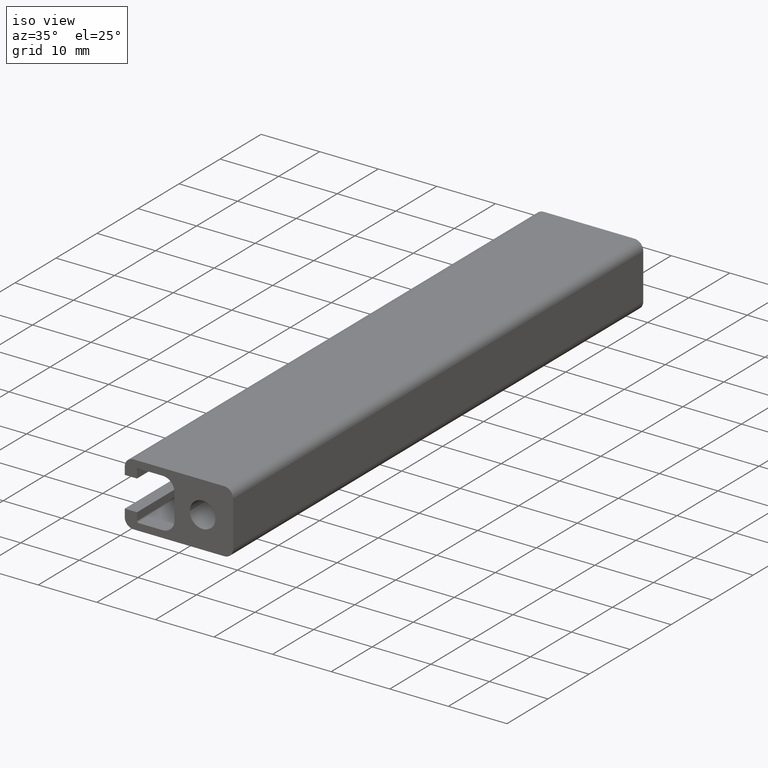
[diagram: clean part render]
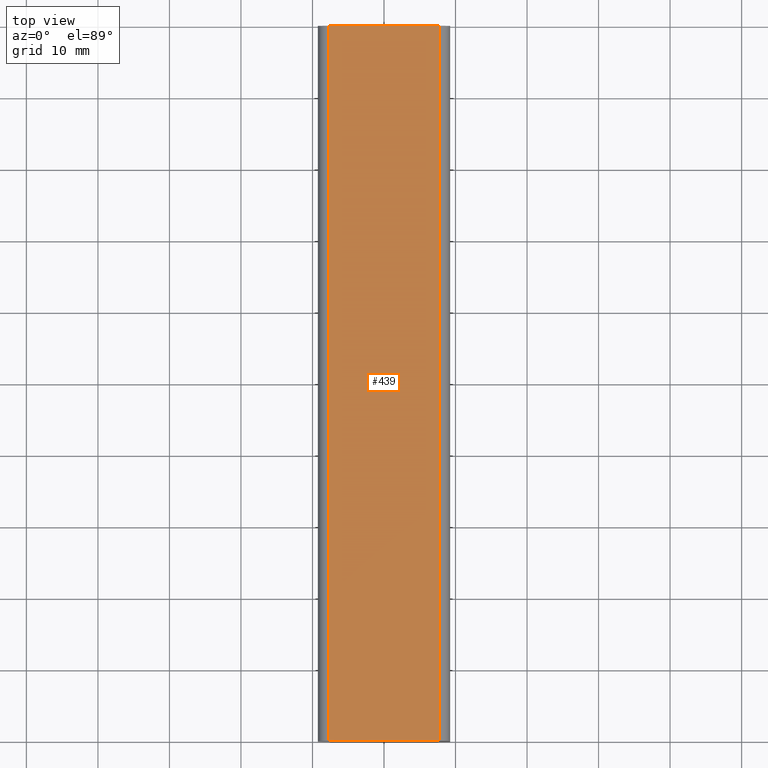
[diagram: tour spotlight — one face highlighted and labeled with its STEP entity id]
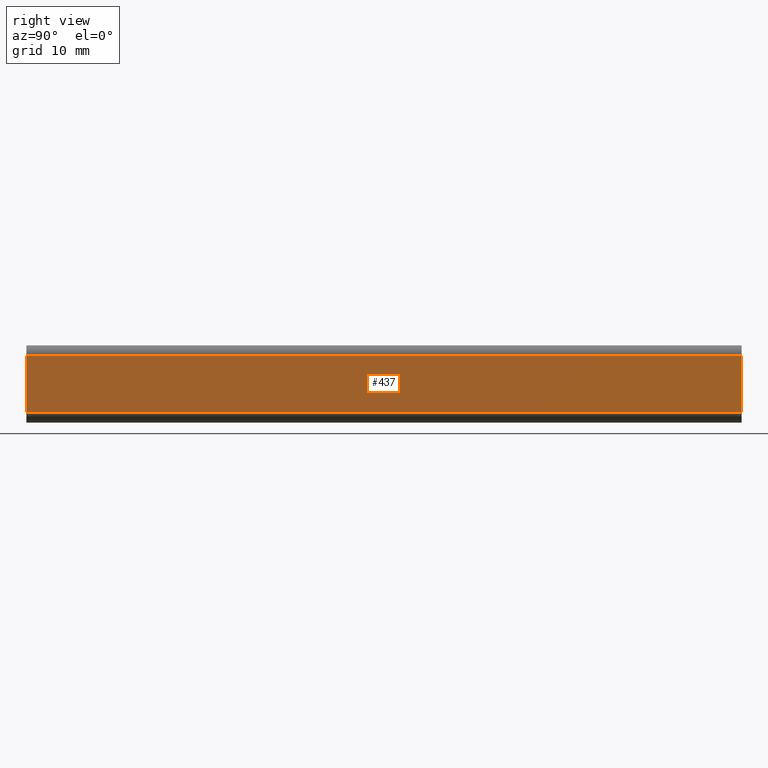
[diagram: tour spotlight — one face highlighted and labeled with its STEP entity id]
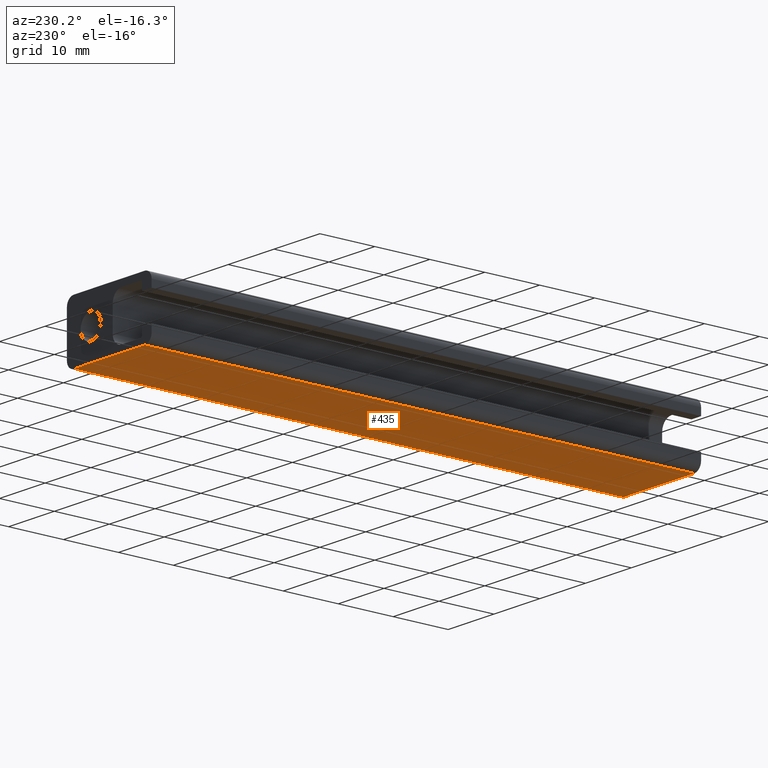
[diagram: tour spotlight — one face highlighted and labeled with its STEP entity id]
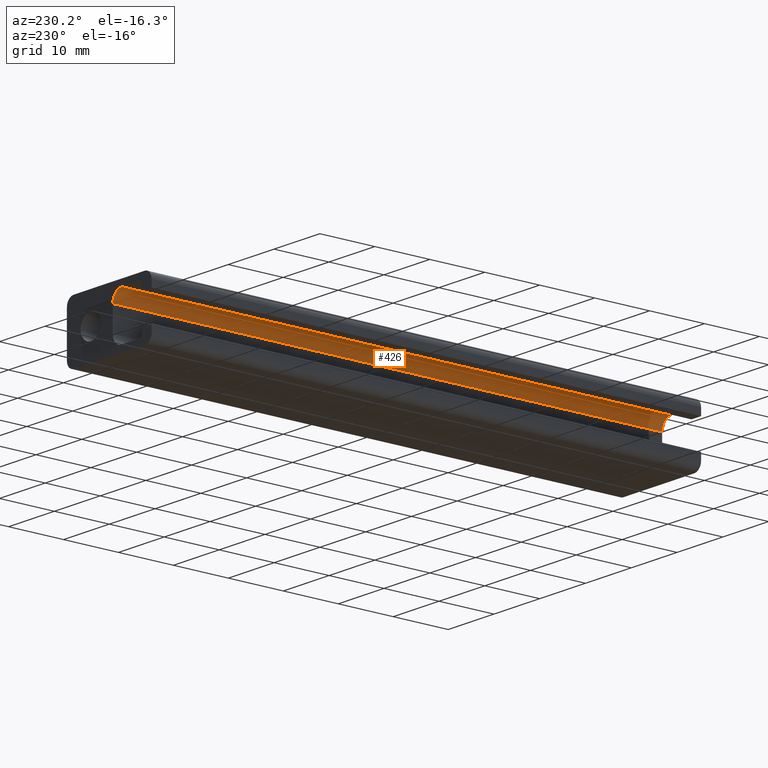
[diagram: tour spotlight — one face highlighted and labeled with its STEP entity id]
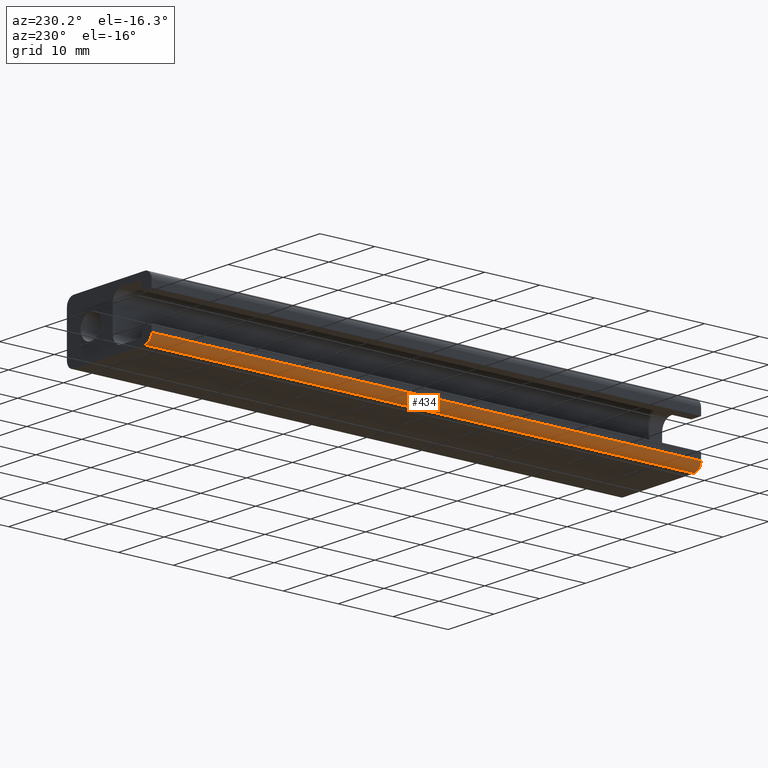
[diagram: tour spotlight — one face highlighted and labeled with its STEP entity id]
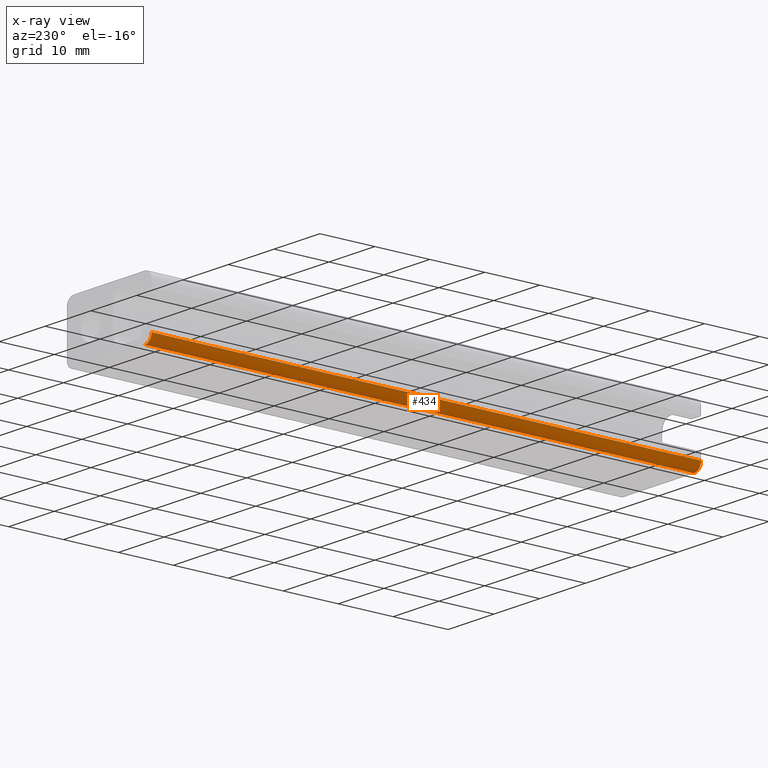
[diagram: x-ray of the same camera — body ghosted, this tour face saturated]
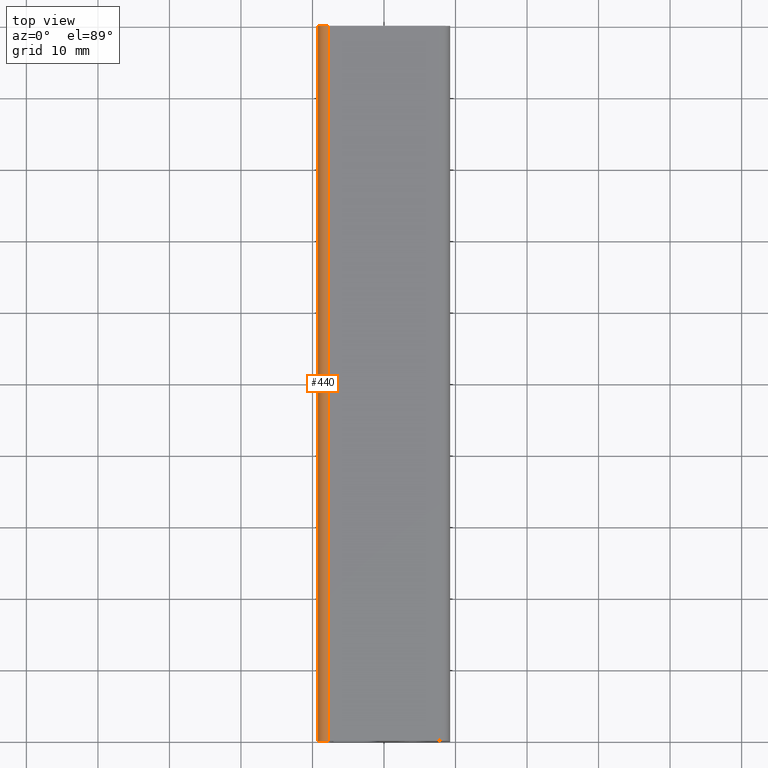
[diagram: tour spotlight — one face highlighted and labeled with its STEP entity id]
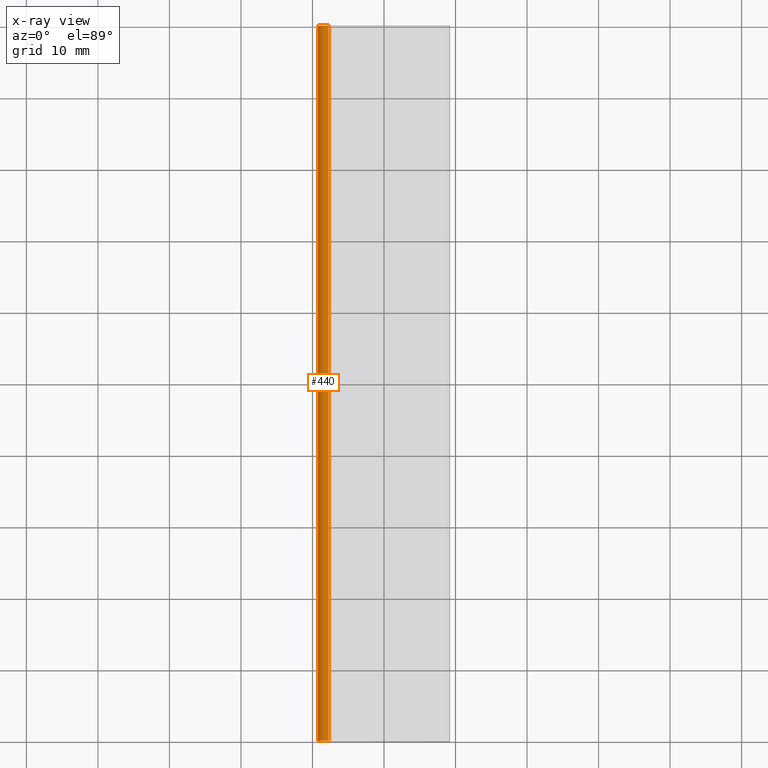
[diagram: x-ray of the same camera — body ghosted, this tour face saturated]
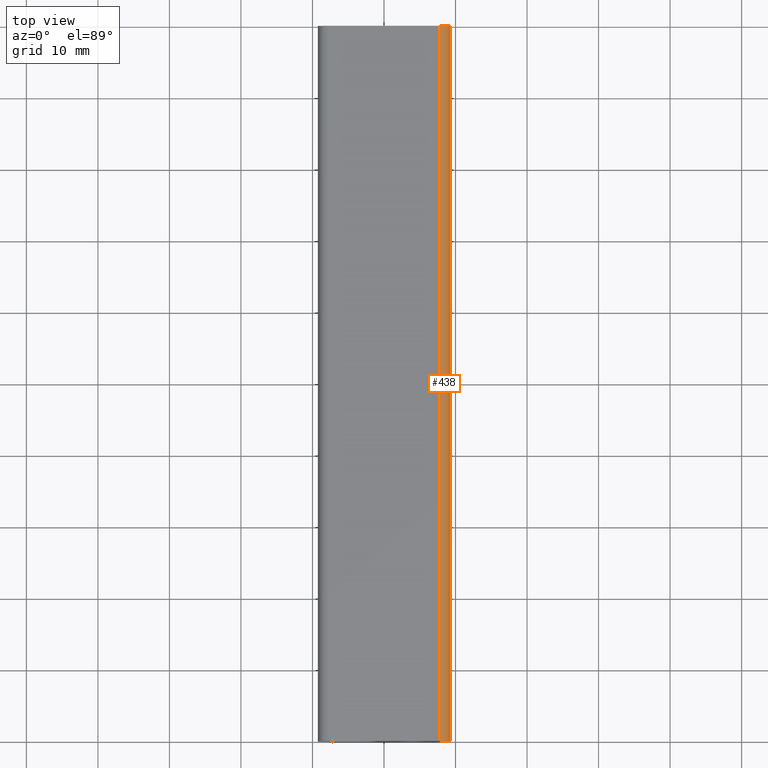
[diagram: tour spotlight — one face highlighted and labeled with its STEP entity id]
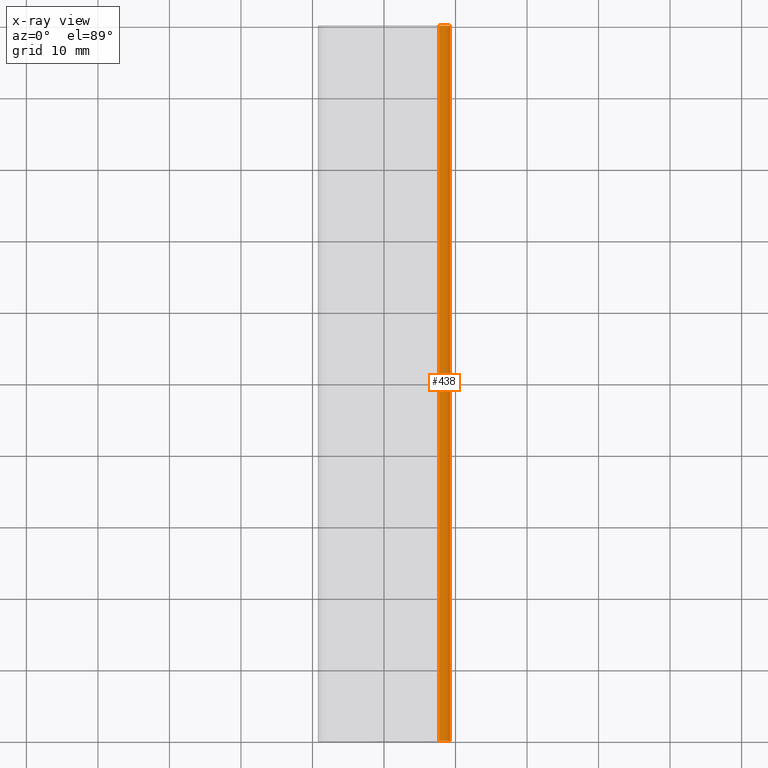
[diagram: x-ray of the same camera — body ghosted, this tour face saturated]
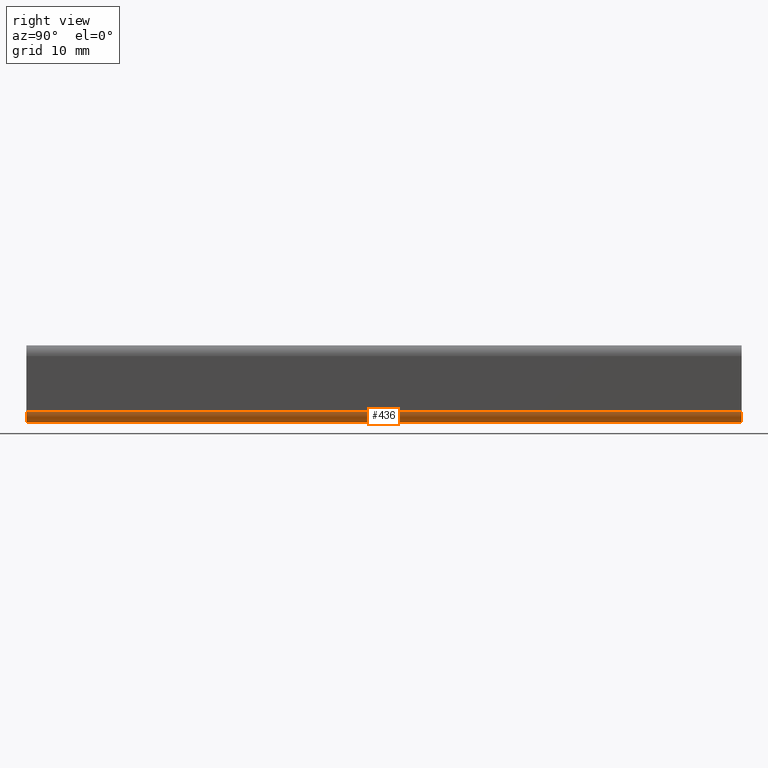
[diagram: tour spotlight — one face highlighted and labeled with its STEP entity id]
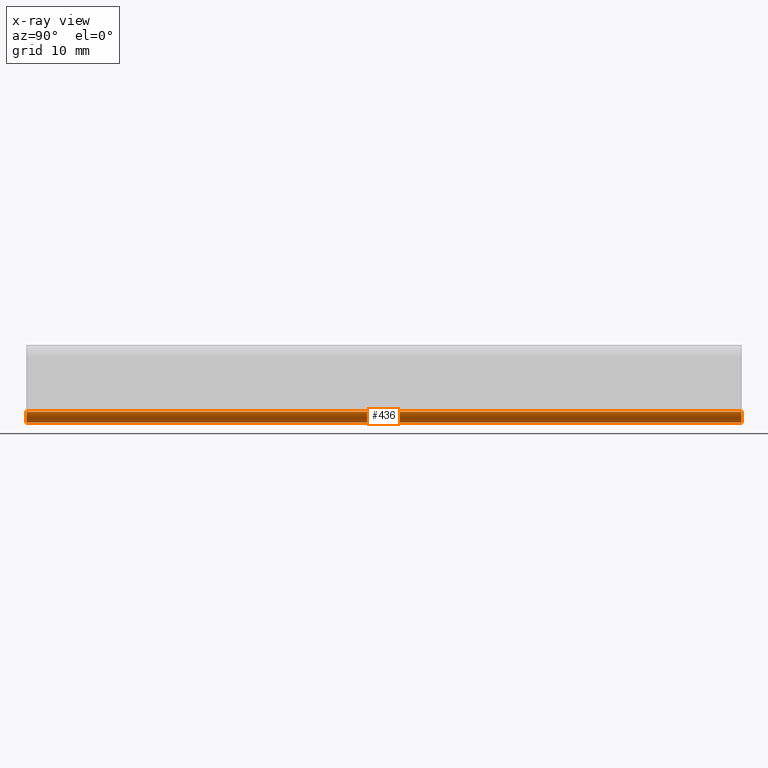
[diagram: x-ray of the same camera — body ghosted, this tour face saturated]
A machine part: a face-by-face anatomy tour. The part has 23 B-rep faces; the first image is the clean iso view, then the 8 largest visible faces are spotlighted one at a time (largest first), each with its STEP entity span.

Face 1 — top view, entity #439. In plain terms, the highlighted planar face has unit normal (0, 0, 1).
Definition (entity closure, byte-faithful):
#45=LINE('',#710,#89);
#46=LINE('',#713,#90);
#47=LINE('',#715,#91);
#48=LINE('',#716,#92);
#89=VECTOR('',#580,100.);
#90=VECTOR('',#583,15.5000000000004);
#91=VECTOR('',#584,15.5000000000004);
#92=VECTOR('',#585,100.);
#111=PLANE('',#478);
#135=FACE_OUTER_BOUND('',#159,.T.);
#159=EDGE_LOOP('',(#349,#350,#351,#352));
#217=VERTEX_POINT('',#706);
#218=VERTEX_POINT('',#708);
#219=VERTEX_POINT('',#712);
#220=VERTEX_POINT('',#714);
#273=EDGE_CURVE('',#217,#218,#45,.T.);
#274=EDGE_CURVE('',#217,#219,#46,.T.);
#275=EDGE_CURVE('',#220,#218,#47,.T.);
#276=EDGE_CURVE('',#219,#220,#48,.T.);
#349=ORIENTED_EDGE('',*,*,#274,.F.);
#350=ORIENTED_EDGE('',*,*,#273,.T.);
#351=ORIENTED_EDGE('',*,*,#275,.F.);
#352=ORIENTED_EDGE('',*,*,#276,.F.);
#439=ADVANCED_FACE('',(#135),#111,.T.);
#478=AXIS2_PLACEMENT_3D('',#711,#581,#582);
#580=DIRECTION('',(0.,1.,0.));
#581=DIRECTION('center_axis',(7.56384202583311E-14,0.,1.));
#582=DIRECTION('ref_axis',(1.,0.,-7.56728013584507E-14));
#583=DIRECTION('',(-1.,0.,7.56384202583311E-14));
#584=DIRECTION('',(1.,0.,-7.56384202583311E-14));
#585=DIRECTION('',(0.,1.,0.));
#706=CARTESIAN_POINT('',(7.75000000000023,0.,5.39999999999846));
#708=CARTESIAN_POINT('',(7.75000000000023,100.,5.39999999999846));
#710=CARTESIAN_POINT('',(7.75000000000023,0.,5.39999999999846));
#711=CARTESIAN_POINT('Origin',(-7.75000000000021,0.,5.39999999999964));
#712=CARTESIAN_POINT('',(-7.75000000000021,0.,5.39999999999964));
#713=CARTESIAN_POINT('',(7.75000000000023,0.,5.39999999999846));
#714=CARTESIAN_POINT('',(-7.75000000000021,100.,5.39999999999964));
#715=CARTESIAN_POINT('',(7.75000000000023,100.,5.39999999999846));
#716=CARTESIAN_POINT('',(-7.75000000000021,0.,5.39999999999964));

Face 2 — right view, entity #437. In plain terms, the highlighted planar face has unit normal (1, 0, 0).
Definition (entity closure, byte-faithful):
#41=LINE('',#698,#85);
#42=LINE('',#701,#86);
#43=LINE('',#703,#87);
#44=LINE('',#704,#88);
#85=VECTOR('',#568,100.);
#86=VECTOR('',#571,7.79999999999745);
#87=VECTOR('',#572,7.79999999999745);
#88=VECTOR('',#573,100.);
#110=PLANE('',#474);
#133=FACE_OUTER_BOUND('',#157,.T.);
#157=EDGE_LOOP('',(#341,#342,#343,#344));
#213=VERTEX_POINT('',#694);
#214=VERTEX_POINT('',#696);
#215=VERTEX_POINT('',#700);
#216=VERTEX_POINT('',#702);
#267=EDGE_CURVE('',#213,#214,#41,.T.);
#268=EDGE_CURVE('',#213,#215,#42,.T.);
#269=EDGE_CURVE('',#216,#214,#43,.T.);
#270=EDGE_CURVE('',#215,#216,#44,.T.);
#341=ORIENTED_EDGE('',*,*,#268,.F.);
#342=ORIENTED_EDGE('',*,*,#267,.T.);
#343=ORIENTED_EDGE('',*,*,#269,.F.);
#344=ORIENTED_EDGE('',*,*,#270,.F.);
#437=ADVANCED_FACE('',(#133),#110,.T.);
#474=AXIS2_PLACEMENT_3D('',#699,#569,#570);
#568=DIRECTION('',(0.,1.,0.));
#569=DIRECTION('center_axis',(1.,0.,2.24321985488438E-13));
#570=DIRECTION('ref_axis',(2.24353868816252E-13,0.,-1.));
#571=DIRECTION('',(-2.24321985488438E-13,0.,1.));
#572=DIRECTION('',(2.24321985488438E-13,0.,-1.));
#573=DIRECTION('',(0.,1.,0.));
#694=CARTESIAN_POINT('',(9.25000000000171,0.,-3.89999999999872));
#696=CARTESIAN_POINT('',(9.25000000000171,100.,-3.89999999999872));
#698=CARTESIAN_POINT('',(9.25000000000171,0.,-3.89999999999872));
#699=CARTESIAN_POINT('Origin',(9.24999999999996,0.,3.89999999999873));
#700=CARTESIAN_POINT('',(9.24999999999996,0.,3.89999999999873));
#701=CARTESIAN_POINT('',(9.25000000000171,0.,-3.89999999999872));
#702=CARTESIAN_POINT('',(9.24999999999996,100.,3.89999999999873));
#703=CARTESIAN_POINT('',(9.25000000000171,100.,-3.89999999999872));
#704=CARTESIAN_POINT('',(9.24999999999996,0.,3.89999999999873));

Face 3 — auxiliary view, entity #435. In plain terms, the highlighted planar face has unit normal (-0, 0, -1).
Definition (entity closure, byte-faithful):
#37=LINE('',#686,#81);
#38=LINE('',#689,#82);
#39=LINE('',#691,#83);
#40=LINE('',#692,#84);
#81=VECTOR('',#556,100.);
#82=VECTOR('',#559,15.5000000000005);
#83=VECTOR('',#560,15.5000000000005);
#84=VECTOR('',#561,100.);
#109=PLANE('',#470);
#131=FACE_OUTER_BOUND('',#155,.T.);
#155=EDGE_LOOP('',(#333,#334,#335,#336));
#209=VERTEX_POINT('',#682);
#210=VERTEX_POINT('',#684);
#211=VERTEX_POINT('',#688);
#212=VERTEX_POINT('',#690);
#261=EDGE_CURVE('',#209,#210,#37,.T.);
#262=EDGE_CURVE('',#209,#211,#38,.T.);
#263=EDGE_CURVE('',#212,#210,#39,.T.);
#264=EDGE_CURVE('',#211,#212,#40,.T.);
#333=ORIENTED_EDGE('',*,*,#262,.F.);
#334=ORIENTED_EDGE('',*,*,#261,.T.);
#335=ORIENTED_EDGE('',*,*,#263,.F.);
#336=ORIENTED_EDGE('',*,*,#264,.F.);
#435=ADVANCED_FACE('',(#131),#109,.T.);
#470=AXIS2_PLACEMENT_3D('',#687,#557,#558);
#556=DIRECTION('',(0.,1.,0.));
#557=DIRECTION('center_axis',(-1.10735793294867E-13,0.,-1.));
#558=DIRECTION('ref_axis',(-1.,0.,1.10755848936606E-13));
#559=DIRECTION('',(1.,0.,-1.10735793294867E-13));
#560=DIRECTION('',(-1.,0.,1.10735793294867E-13));
#561=DIRECTION('',(0.,1.,0.));
#682=CARTESIAN_POINT('',(-7.75000000000021,0.,-5.39999999999849));
#684=CARTESIAN_POINT('',(-7.75000000000021,100.,-5.39999999999849));
#686=CARTESIAN_POINT('',(-7.75000000000021,0.,-5.39999999999849));
#687=CARTESIAN_POINT('Origin',(7.75000000000024,0.,-5.40000000000021));
#688=CARTESIAN_POINT('',(7.75000000000024,0.,-5.40000000000021));
#689=CARTESIAN_POINT('',(-7.75000000000021,0.,-5.39999999999849));
#690=CARTESIAN_POINT('',(7.75000000000024,100.,-5.40000000000021));
#691=CARTESIAN_POINT('',(-7.75000000000021,100.,-5.39999999999849));
#692=CARTESIAN_POINT('',(7.75000000000024,0.,-5.40000000000021));

Face 4 — auxiliary view, entity #426. In plain terms, the highlighted cylindrical surface (edge-blend (fillet) strip) has radius 2 mm, axis along (0, 1, 0).
Definition (entity closure, byte-faithful):
#18=LINE('',#632,#62);
#19=LINE('',#638,#63);
#62=VECTOR('',#503,100.);
#63=VECTOR('',#510,100.);
#122=FACE_OUTER_BOUND('',#146,.T.);
#146=EDGE_LOOP('',(#297,#298,#299,#300));
#171=CIRCLE('',#454,2.00000000000045);
#172=CIRCLE('',#455,2.00000000000045);
#190=VERTEX_POINT('',#626);
#192=VERTEX_POINT('',#630);
#193=VERTEX_POINT('',#634);
#194=VERTEX_POINT('',#636);
#234=EDGE_CURVE('',#190,#192,#18,.T.);
#235=EDGE_CURVE('',#190,#193,#171,.T.);
#236=EDGE_CURVE('',#194,#192,#172,.T.);
#237=EDGE_CURVE('',#193,#194,#19,.T.);
#297=ORIENTED_EDGE('',*,*,#235,.F.);
#298=ORIENTED_EDGE('',*,*,#234,.T.);
#299=ORIENTED_EDGE('',*,*,#236,.F.);
#300=ORIENTED_EDGE('',*,*,#237,.F.);
#416=CYLINDRICAL_SURFACE('',#453,2.00000000000045);
#426=ADVANCED_FACE('',(#122),#416,.F.);
#453=AXIS2_PLACEMENT_3D('',#633,#504,#505);
#454=AXIS2_PLACEMENT_3D('',#635,#506,#507);
#455=AXIS2_PLACEMENT_3D('',#637,#508,#509);
#503=DIRECTION('',(0.,1.,0.));
#504=DIRECTION('center_axis',(0.,1.,0.));
#505=DIRECTION('ref_axis',(0.,0.,1.));
#506=DIRECTION('center_axis',(0.,1.,0.));
#507=DIRECTION('ref_axis',(0.,0.,1.));
#508=DIRECTION('center_axis',(0.,-1.,0.));
#509=DIRECTION('ref_axis',(0.,0.,1.));
#510=DIRECTION('',(0.,1.,0.));
#626=CARTESIAN_POINT('',(-2.75000000000022,0.,4.20000000000073));
#630=CARTESIAN_POINT('',(-2.75000000000022,100.,4.20000000000073));
#632=CARTESIAN_POINT('',(-2.75000000000022,0.,4.20000000000073));
#633=CARTESIAN_POINT('Origin',(-2.75000000000022,0.,2.20000000000028));
#634=CARTESIAN_POINT('',(-0.749999999999762,0.,2.20000000000027));
#635=CARTESIAN_POINT('Origin',(-2.75000000000022,0.,2.20000000000028));
#636=CARTESIAN_POINT('',(-0.749999999999762,100.,2.20000000000027));
#637=CARTESIAN_POINT('Origin',(-2.75000000000022,100.,2.20000000000028));
#638=CARTESIAN_POINT('',(-0.749999999999762,0.,2.20000000000027));

Face 5 — auxiliary view, entity #434. An x-ray twin of the same camera follows (body ghosted, this face saturated) — the face is partly hidden behind the body. In plain terms, the highlighted cylindrical surface (edge-blend (fillet) strip) has radius 1.5 mm, axis along (0, 1, 0).
Definition (entity closure, byte-faithful):
#36=LINE('',#680,#80);
#37=LINE('',#686,#81);
#80=VECTOR('',#549,100.);
#81=VECTOR('',#556,100.);
#130=FACE_OUTER_BOUND('',#154,.T.);
#154=EDGE_LOOP('',(#329,#330,#331,#332));
#177=CIRCLE('',#468,1.49999999999977);
#178=CIRCLE('',#469,1.49999999999977);
#207=VERTEX_POINT('',#676);
#208=VERTEX_POINT('',#678);
#209=VERTEX_POINT('',#682);
#210=VERTEX_POINT('',#684);
#258=EDGE_CURVE('',#207,#208,#36,.T.);
#259=EDGE_CURVE('',#207,#209,#177,.T.);
#260=EDGE_CURVE('',#210,#208,#178,.T.);
#261=EDGE_CURVE('',#209,#210,#37,.T.);
#329=ORIENTED_EDGE('',*,*,#259,.F.);
#330=ORIENTED_EDGE('',*,*,#258,.T.);
#331=ORIENTED_EDGE('',*,*,#260,.F.);
#332=ORIENTED_EDGE('',*,*,#261,.F.);
#419=CYLINDRICAL_SURFACE('',#467,1.49999999999977);
#434=ADVANCED_FACE('',(#130),#419,.T.);
#467=AXIS2_PLACEMENT_3D('',#681,#550,#551);
#468=AXIS2_PLACEMENT_3D('',#683,#552,#553);
#469=AXIS2_PLACEMENT_3D('',#685,#554,#555);
#549=DIRECTION('',(0.,1.,0.));
#550=DIRECTION('center_axis',(0.,1.,0.));
#551=DIRECTION('ref_axis',(-5.92118946466844E-15,0.,1.));
#552=DIRECTION('center_axis',(0.,-1.,0.));
#553=DIRECTION('ref_axis',(-5.92118946466844E-15,0.,1.));
#554=DIRECTION('center_axis',(0.,1.,0.));
#555=DIRECTION('ref_axis',(-5.92118946466844E-15,0.,1.));
#556=DIRECTION('',(0.,1.,0.));
#676=CARTESIAN_POINT('',(-9.24999999999999,0.,-3.89999999999873));
#678=CARTESIAN_POINT('',(-9.24999999999999,100.,-3.89999999999873));
#680=CARTESIAN_POINT('',(-9.24999999999999,0.,-3.89999999999873));
#681=CARTESIAN_POINT('Origin',(-7.75000000000022,0.,-3.89999999999873));
#682=CARTESIAN_POINT('',(-7.75000000000021,0.,-5.39999999999849));
#683=CARTESIAN_POINT('Origin',(-7.75000000000022,0.,-3.89999999999873));
#684=CARTESIAN_POINT('',(-7.75000000000021,100.,-5.39999999999849));
#685=CARTESIAN_POINT('Origin',(-7.75000000000022,100.,-3.89999999999873));
#686=CARTESIAN_POINT('',(-7.75000000000021,0.,-5.39999999999849));

Face 6 — top view, entity #440. An x-ray twin of the same camera follows (body ghosted, this face saturated) — the face is partly hidden behind the body. In plain terms, the highlighted cylindrical surface (edge-blend (fillet) strip) has radius 1.5 mm, axis along (0, 1, 0).
Definition (entity closure, byte-faithful):
#48=LINE('',#716,#92);
#49=LINE('',#722,#93);
#92=VECTOR('',#585,100.);
#93=VECTOR('',#592,100.);
#136=FACE_OUTER_BOUND('',#160,.T.);
#160=EDGE_LOOP('',(#353,#354,#355,#356));
#183=CIRCLE('',#480,1.50000000000091);
#184=CIRCLE('',#481,1.50000000000091);
#219=VERTEX_POINT('',#712);
#220=VERTEX_POINT('',#714);
#221=VERTEX_POINT('',#718);
#222=VERTEX_POINT('',#720);
#276=EDGE_CURVE('',#219,#220,#48,.T.);
#277=EDGE_CURVE('',#219,#221,#183,.T.);
#278=EDGE_CURVE('',#222,#220,#184,.T.);
#279=EDGE_CURVE('',#221,#222,#49,.T.);
#353=ORIENTED_EDGE('',*,*,#277,.F.);
#354=ORIENTED_EDGE('',*,*,#276,.T.);
#355=ORIENTED_EDGE('',*,*,#278,.F.);
#356=ORIENTED_EDGE('',*,*,#279,.F.);
#422=CYLINDRICAL_SURFACE('',#479,1.50000000000091);
#440=ADVANCED_FACE('',(#136),#422,.T.);
#479=AXIS2_PLACEMENT_3D('',#717,#586,#587);
#480=AXIS2_PLACEMENT_3D('',#719,#588,#589);
#481=AXIS2_PLACEMENT_3D('',#721,#590,#591);
#585=DIRECTION('',(0.,1.,0.));
#586=DIRECTION('center_axis',(0.,1.,0.));
#587=DIRECTION('ref_axis',(1.,0.,-5.92118946466836E-15));
#588=DIRECTION('center_axis',(0.,-1.,0.));
#589=DIRECTION('ref_axis',(1.,0.,-5.92118946466836E-15));
#590=DIRECTION('center_axis',(0.,1.,0.));
#591=DIRECTION('ref_axis',(1.,0.,-5.92118946466836E-15));
#592=DIRECTION('',(0.,1.,0.));
#712=CARTESIAN_POINT('',(-7.75000000000021,0.,5.39999999999964));
#714=CARTESIAN_POINT('',(-7.75000000000021,100.,5.39999999999964));
#716=CARTESIAN_POINT('',(-7.75000000000021,0.,5.39999999999964));
#717=CARTESIAN_POINT('Origin',(-7.75000000000021,0.,3.89999999999873));
#718=CARTESIAN_POINT('',(-9.25,0.,3.89999999999874));
#719=CARTESIAN_POINT('Origin',(-7.75000000000021,0.,3.89999999999873));
#720=CARTESIAN_POINT('',(-9.25,100.,3.89999999999874));
#721=CARTESIAN_POINT('Origin',(-7.75000000000021,100.,3.89999999999873));
#722=CARTESIAN_POINT('',(-9.25,0.,3.89999999999874));

Face 7 — top view, entity #438. An x-ray twin of the same camera follows (body ghosted, this face saturated) — the face is partly hidden behind the body. In plain terms, the highlighted cylindrical surface (edge-blend (fillet) strip) has radius 1.5 mm, axis along (0, 1, 0).
Definition (entity closure, byte-faithful):
#44=LINE('',#704,#88);
#45=LINE('',#710,#89);
#88=VECTOR('',#573,100.);
#89=VECTOR('',#580,100.);
#134=FACE_OUTER_BOUND('',#158,.T.);
#158=EDGE_LOOP('',(#345,#346,#347,#348));
#181=CIRCLE('',#476,1.49999999999974);
#182=CIRCLE('',#477,1.49999999999974);
#215=VERTEX_POINT('',#700);
#216=VERTEX_POINT('',#702);
#217=VERTEX_POINT('',#706);
#218=VERTEX_POINT('',#708);
#270=EDGE_CURVE('',#215,#216,#44,.T.);
#271=EDGE_CURVE('',#215,#217,#181,.T.);
#272=EDGE_CURVE('',#218,#216,#182,.T.);
#273=EDGE_CURVE('',#217,#218,#45,.T.);
#345=ORIENTED_EDGE('',*,*,#271,.F.);
#346=ORIENTED_EDGE('',*,*,#270,.T.);
#347=ORIENTED_EDGE('',*,*,#272,.F.);
#348=ORIENTED_EDGE('',*,*,#273,.F.);
#421=CYLINDRICAL_SURFACE('',#475,1.49999999999974);
#438=ADVANCED_FACE('',(#134),#421,.T.);
#475=AXIS2_PLACEMENT_3D('',#705,#574,#575);
#476=AXIS2_PLACEMENT_3D('',#707,#576,#577);
#477=AXIS2_PLACEMENT_3D('',#709,#578,#579);
#573=DIRECTION('',(0.,1.,0.));
#574=DIRECTION('center_axis',(0.,1.,0.));
#575=DIRECTION('ref_axis',(-4.44089209850139E-15,0.,-1.));
#576=DIRECTION('center_axis',(0.,-1.,0.));
#577=DIRECTION('ref_axis',(-4.44089209850139E-15,0.,-1.));
#578=DIRECTION('center_axis',(0.,1.,0.));
#579=DIRECTION('ref_axis',(-4.44089209850139E-15,0.,-1.));
#580=DIRECTION('',(0.,1.,0.));
#700=CARTESIAN_POINT('',(9.24999999999996,0.,3.89999999999873));
#702=CARTESIAN_POINT('',(9.24999999999996,100.,3.89999999999873));
#704=CARTESIAN_POINT('',(9.24999999999996,0.,3.89999999999873));
#705=CARTESIAN_POINT('Origin',(7.75000000000022,0.,3.89999999999872));
#706=CARTESIAN_POINT('',(7.75000000000023,0.,5.39999999999846));
#707=CARTESIAN_POINT('Origin',(7.75000000000022,0.,3.89999999999872));
#708=CARTESIAN_POINT('',(7.75000000000023,100.,5.39999999999846));
#709=CARTESIAN_POINT('Origin',(7.75000000000022,100.,3.89999999999872));
#710=CARTESIAN_POINT('',(7.75000000000023,0.,5.39999999999846));

Face 8 — right view, entity #436. An x-ray twin of the same camera follows (body ghosted, this face saturated) — the face is partly hidden behind the body. In plain terms, the highlighted cylindrical surface (edge-blend (fillet) strip) has radius 1.5 mm, axis along (0, 1, 0).
Definition (entity closure, byte-faithful):
#40=LINE('',#692,#84);
#41=LINE('',#698,#85);
#84=VECTOR('',#561,100.);
#85=VECTOR('',#568,100.);
#132=FACE_OUTER_BOUND('',#156,.T.);
#156=EDGE_LOOP('',(#337,#338,#339,#340));
#179=CIRCLE('',#472,1.50000000000148);
#180=CIRCLE('',#473,1.50000000000148);
#211=VERTEX_POINT('',#688);
#212=VERTEX_POINT('',#690);
#213=VERTEX_POINT('',#694);
#214=VERTEX_POINT('',#696);
#264=EDGE_CURVE('',#211,#212,#40,.T.);
#265=EDGE_CURVE('',#211,#213,#179,.T.);
#266=EDGE_CURVE('',#214,#212,#180,.T.);
#267=EDGE_CURVE('',#213,#214,#41,.T.);
#337=ORIENTED_EDGE('',*,*,#265,.F.);
#338=ORIENTED_EDGE('',*,*,#264,.T.);
#339=ORIENTED_EDGE('',*,*,#266,.F.);
#340=ORIENTED_EDGE('',*,*,#267,.F.);
#420=CYLINDRICAL_SURFACE('',#471,1.50000000000148);
#436=ADVANCED_FACE('',(#132),#420,.T.);
#471=AXIS2_PLACEMENT_3D('',#693,#562,#563);
#472=AXIS2_PLACEMENT_3D('',#695,#564,#565);
#473=AXIS2_PLACEMENT_3D('',#697,#566,#567);
#561=DIRECTION('',(0.,1.,0.));
#562=DIRECTION('center_axis',(0.,1.,0.));
#563=DIRECTION('ref_axis',(-1.,0.,-2.96059473233082E-15));
#564=DIRECTION('center_axis',(0.,-1.,0.));
#565=DIRECTION('ref_axis',(-1.,0.,-2.96059473233082E-15));
#566=DIRECTION('center_axis',(0.,1.,0.));
#567=DIRECTION('ref_axis',(-1.,0.,-2.96059473233082E-15));
#568=DIRECTION('',(0.,1.,0.));
#688=CARTESIAN_POINT('',(7.75000000000024,0.,-5.40000000000021));
#690=CARTESIAN_POINT('',(7.75000000000024,100.,-5.40000000000021));
#692=CARTESIAN_POINT('',(7.75000000000024,0.,-5.40000000000021));
#693=CARTESIAN_POINT('Origin',(7.75000000000023,0.,-3.89999999999873));
#694=CARTESIAN_POINT('',(9.25000000000171,0.,-3.89999999999872));
#695=CARTESIAN_POINT('Origin',(7.75000000000023,0.,-3.89999999999873));
#696=CARTESIAN_POINT('',(9.25000000000171,100.,-3.89999999999872));
#697=CARTESIAN_POINT('Origin',(7.75000000000023,100.,-3.89999999999873));
#698=CARTESIAN_POINT('',(9.25000000000171,0.,-3.89999999999872));